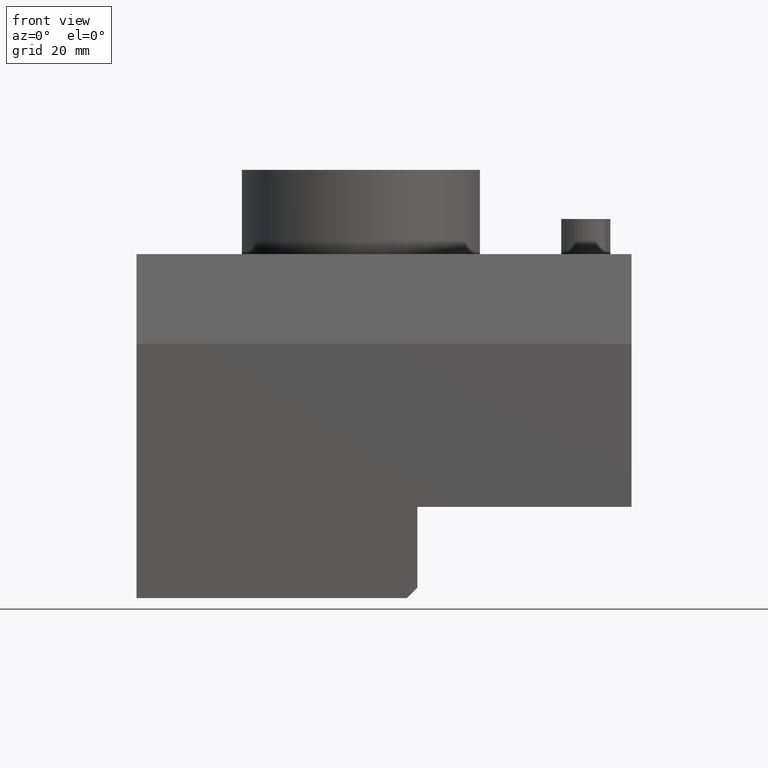
[diagram: clean part render]
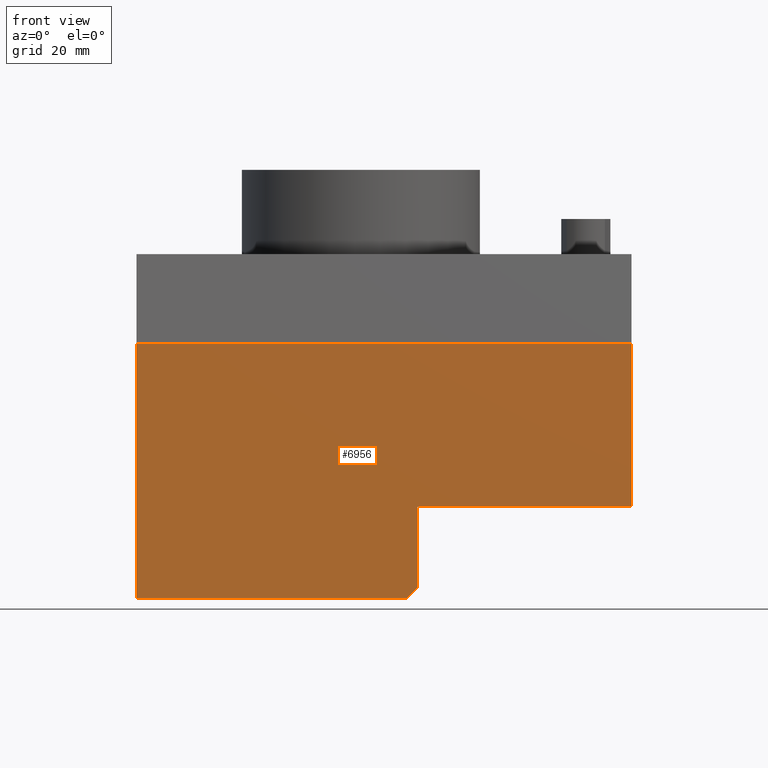
[diagram: same view with one face highlighted and labeled with its STEP entity id]
A machine part, front view. The second image highlights one B-rep face of the part: STEP entity #6956.
In plain terms, the highlighted planar face has unit normal (0, 1, 0).
Its self-contained STEP definition (entity closure, byte-faithful):
#71 = PLANE('',#72);
#72 = AXIS2_PLACEMENT_3D('',#73,#74,#75);
#73 = CARTESIAN_POINT('',(77.,-86.27928892228,-72.));
#74 = DIRECTION('',(0.E+000,0.E+000,-1.));
#75 = DIRECTION('',(1.,0.E+000,0.E+000));
#2731 = EDGE_CURVE('',#2732,#2734,#2736,.T.);
#2732 = VERTEX_POINT('',#2733);
#2733 = CARTESIAN_POINT('',(77.,-46.5,-72.));
#2734 = VERTEX_POINT('',#2735);
#2735 = CARTESIAN_POINT('',(16.,-46.5,-72.));
#2736 = SURFACE_CURVE('',#2737,(#2741,#2748),.PCURVE_S1.);
#2737 = LINE('',#2738,#2739);
#2738 = CARTESIAN_POINT('',(-64.,-46.5,-72.));
#2739 = VECTOR('',#2740,1.);
#2740 = DIRECTION('',(-1.,0.E+000,0.E+000));
#2741 = PCURVE('',#71,#2742);
#2742 = DEFINITIONAL_REPRESENTATION('',(#2743),#2747);
#2743 = LINE('',#2744,#2745);
#2744 = CARTESIAN_POINT('',(-141.,-39.77928892228));
#2745 = VECTOR('',#2746,1.);
#2746 = DIRECTION('',(-1.,0.E+000));
#2747 = ( GEOMETRIC_REPRESENTATION_CONTEXT(2) 
PARAMETRIC_REPRESENTATION_CONTEXT() REPRESENTATION_CONTEXT('2D SPACE',''
  ) );
#2748 = PCURVE('',#2749,#2754);
#2749 = PLANE('',#2750);
#2750 = AXIS2_PLACEMENT_3D('',#2751,#2752,#2753);
#2751 = CARTESIAN_POINT('',(-64.,-46.5,-98.));
#2752 = DIRECTION('',(0.E+000,1.,0.E+000));
#2753 = DIRECTION('',(-1.,0.E+000,0.E+000));
#2754 = DEFINITIONAL_REPRESENTATION('',(#2755),#2759);
#2755 = LINE('',#2756,#2757);
#2756 = CARTESIAN_POINT('',(0.E+000,26.));
#2757 = VECTOR('',#2758,1.);
#2758 = DIRECTION('',(1.,0.E+000));
#2759 = ( GEOMETRIC_REPRESENTATION_CONTEXT(2) 
PARAMETRIC_REPRESENTATION_CONTEXT() REPRESENTATION_CONTEXT('2D SPACE',''
  ) );
#2777 = PLANE('',#2778);
#2778 = AXIS2_PLACEMENT_3D('',#2779,#2780,#2781);
#2779 = CARTESIAN_POINT('',(16.,-86.27928892228,-72.));
#2780 = DIRECTION('',(1.,0.E+000,0.E+000));
#2781 = DIRECTION('',(0.E+000,0.E+000,1.));
#2831 = PLANE('',#2832);
#2832 = AXIS2_PLACEMENT_3D('',#2833,#2834,#2835);
#2833 = CARTESIAN_POINT('',(77.,-25.,-98.));
#2834 = DIRECTION('',(-1.,0.E+000,0.E+000));
#2835 = DIRECTION('',(0.E+000,0.E+000,-1.));
#4346 = PLANE('',#4347);
#4347 = AXIS2_PLACEMENT_3D('',#4348,#4349,#4350);
#4348 = CARTESIAN_POINT('',(16.,-86.27928892228,-95.));
#4349 = DIRECTION('',(0.707106781187,0.E+000,-0.707106781187));
#4350 = DIRECTION('',(0.707106781187,0.E+000,0.707106781187));
#4374 = PLANE('',#4375);
#4375 = AXIS2_PLACEMENT_3D('',#4376,#4377,#4378);
#4376 = CARTESIAN_POINT('',(-64.,-25.,-98.));
#4377 = DIRECTION('',(0.E+000,0.E+000,1.));
#4378 = DIRECTION('',(-1.,0.E+000,0.E+000));
#4402 = PLANE('',#4403);
#4403 = AXIS2_PLACEMENT_3D('',#4404,#4405,#4406);
#4404 = CARTESIAN_POINT('',(-64.,-25.,-98.));
#4405 = DIRECTION('',(-1.,0.E+000,0.E+000));
#4406 = DIRECTION('',(0.E+000,0.E+000,-1.));
#6129 = VERTEX_POINT('',#6130);
#6130 = CARTESIAN_POINT('',(16.,-46.5,-95.));
#6151 = EDGE_CURVE('',#6129,#6152,#6154,.T.);
#6152 = VERTEX_POINT('',#6153);
#6153 = CARTESIAN_POINT('',(13.,-46.5,-98.));
#6154 = SURFACE_CURVE('',#6155,(#6159,#6166),.PCURVE_S1.);
#6155 = LINE('',#6156,#6157);
#6156 = CARTESIAN_POINT('',(-25.5,-46.5,-136.5));
#6157 = VECTOR('',#6158,1.);
#6158 = DIRECTION('',(-0.707106781187,-0.E+000,-0.707106781187));
#6159 = PCURVE('',#4346,#6160);
#6160 = DEFINITIONAL_REPRESENTATION('',(#6161),#6165);
#6161 = LINE('',#6162,#6163);
#6162 = CARTESIAN_POINT('',(-58.68986283848,-39.77928892228));
#6163 = VECTOR('',#6164,1.);
#6164 = DIRECTION('',(-1.,0.E+000));
#6165 = ( GEOMETRIC_REPRESENTATION_CONTEXT(2) 
PARAMETRIC_REPRESENTATION_CONTEXT() REPRESENTATION_CONTEXT('2D SPACE',''
  ) );
#6166 = PCURVE('',#2749,#6167);
#6167 = DEFINITIONAL_REPRESENTATION('',(#6168),#6172);
#6168 = LINE('',#6169,#6170);
#6169 = CARTESIAN_POINT('',(-38.5,-38.5));
#6170 = VECTOR('',#6171,1.);
#6171 = DIRECTION('',(0.707106781187,-0.707106781187));
#6172 = ( GEOMETRIC_REPRESENTATION_CONTEXT(2) 
PARAMETRIC_REPRESENTATION_CONTEXT() REPRESENTATION_CONTEXT('2D SPACE',''
  ) );
#6198 = EDGE_CURVE('',#2734,#6129,#6199,.T.);
#6199 = SURFACE_CURVE('',#6200,(#6204,#6211),.PCURVE_S1.);
#6200 = LINE('',#6201,#6202);
#6201 = CARTESIAN_POINT('',(16.,-46.5,-98.));
#6202 = VECTOR('',#6203,1.);
#6203 = DIRECTION('',(0.E+000,0.E+000,-1.));
#6204 = PCURVE('',#2777,#6205);
#6205 = DEFINITIONAL_REPRESENTATION('',(#6206),#6210);
#6206 = LINE('',#6207,#6208);
#6207 = CARTESIAN_POINT('',(-26.,-39.77928892228));
#6208 = VECTOR('',#6209,1.);
#6209 = DIRECTION('',(-1.,0.E+000));
#6210 = ( GEOMETRIC_REPRESENTATION_CONTEXT(2) 
PARAMETRIC_REPRESENTATION_CONTEXT() REPRESENTATION_CONTEXT('2D SPACE',''
  ) );
#6211 = PCURVE('',#2749,#6212);
#6212 = DEFINITIONAL_REPRESENTATION('',(#6213),#6217);
#6213 = LINE('',#6214,#6215);
#6214 = CARTESIAN_POINT('',(-80.,0.E+000));
#6215 = VECTOR('',#6216,1.);
#6216 = DIRECTION('',(0.E+000,-1.));
#6217 = ( GEOMETRIC_REPRESENTATION_CONTEXT(2) 
PARAMETRIC_REPRESENTATION_CONTEXT() REPRESENTATION_CONTEXT('2D SPACE',''
  ) );
#6731 = PLANE('',#6732);
#6732 = AXIS2_PLACEMENT_3D('',#6733,#6734,#6735);
#6733 = CARTESIAN_POINT('',(-64.,-46.5,-25.52076818828));
#6734 = DIRECTION('',(0.E+000,0.984807753012,-0.173648177667));
#6735 = DIRECTION('',(0.E+000,0.173648177667,0.984807753012));
#6889 = EDGE_CURVE('',#6890,#6892,#6894,.T.);
#6890 = VERTEX_POINT('',#6891);
#6891 = CARTESIAN_POINT('',(-64.,-46.5,-25.52076818828));
#6892 = VERTEX_POINT('',#6893);
#6893 = CARTESIAN_POINT('',(77.,-46.5,-25.52076818828));
#6894 = SURFACE_CURVE('',#6895,(#6899,#6906),.PCURVE_S1.);
#6895 = LINE('',#6896,#6897);
#6896 = CARTESIAN_POINT('',(-64.,-46.5,-25.52076818828));
#6897 = VECTOR('',#6898,1.);
#6898 = DIRECTION('',(1.,0.E+000,0.E+000));
#6899 = PCURVE('',#6731,#6900);
#6900 = DEFINITIONAL_REPRESENTATION('',(#6901),#6905);
#6901 = LINE('',#6902,#6903);
#6902 = CARTESIAN_POINT('',(0.E+000,0.E+000));
#6903 = VECTOR('',#6904,1.);
#6904 = DIRECTION('',(0.E+000,1.));
#6905 = ( GEOMETRIC_REPRESENTATION_CONTEXT(2) 
PARAMETRIC_REPRESENTATION_CONTEXT() REPRESENTATION_CONTEXT('2D SPACE',''
  ) );
#6906 = PCURVE('',#2749,#6907);
#6907 = DEFINITIONAL_REPRESENTATION('',(#6908),#6912);
#6908 = LINE('',#6909,#6910);
#6909 = CARTESIAN_POINT('',(0.E+000,72.47923181172));
#6910 = VECTOR('',#6911,1.);
#6911 = DIRECTION('',(-1.,0.E+000));
#6912 = ( GEOMETRIC_REPRESENTATION_CONTEXT(2) 
PARAMETRIC_REPRESENTATION_CONTEXT() REPRESENTATION_CONTEXT('2D SPACE',''
  ) );
#6956 = ADVANCED_FACE('',(#6957),#2749,.F.);
#6957 = FACE_BOUND('',#6958,.T.);
#6958 = EDGE_LOOP('',(#6959,#6960,#6981,#6982,#7005,#7026,#7027));
#6959 = ORIENTED_EDGE('',*,*,#2731,.F.);
#6960 = ORIENTED_EDGE('',*,*,#6961,.T.);
#6961 = EDGE_CURVE('',#2732,#6892,#6962,.T.);
#6962 = SURFACE_CURVE('',#6963,(#6967,#6974),.PCURVE_S1.);
#6963 = LINE('',#6964,#6965);
#6964 = CARTESIAN_POINT('',(77.,-46.5,-98.));
#6965 = VECTOR('',#6966,1.);
#6966 = DIRECTION('',(0.E+000,0.E+000,1.));
#6967 = PCURVE('',#2749,#6968);
#6968 = DEFINITIONAL_REPRESENTATION('',(#6969),#6973);
#6969 = LINE('',#6970,#6971);
#6970 = CARTESIAN_POINT('',(-141.,0.E+000));
#6971 = VECTOR('',#6972,1.);
#6972 = DIRECTION('',(0.E+000,1.));
#6973 = ( GEOMETRIC_REPRESENTATION_CONTEXT(2) 
PARAMETRIC_REPRESENTATION_CONTEXT() REPRESENTATION_CONTEXT('2D SPACE',''
  ) );
#6974 = PCURVE('',#2831,#6975);
#6975 = DEFINITIONAL_REPRESENTATION('',(#6976),#6980);
#6976 = LINE('',#6977,#6978);
#6977 = CARTESIAN_POINT('',(0.E+000,21.5));
#6978 = VECTOR('',#6979,1.);
#6979 = DIRECTION('',(-1.,0.E+000));
#6980 = ( GEOMETRIC_REPRESENTATION_CONTEXT(2) 
PARAMETRIC_REPRESENTATION_CONTEXT() REPRESENTATION_CONTEXT('2D SPACE',''
  ) );
#6981 = ORIENTED_EDGE('',*,*,#6889,.F.);
#6982 = ORIENTED_EDGE('',*,*,#6983,.F.);
#6983 = EDGE_CURVE('',#6984,#6890,#6986,.T.);
#6984 = VERTEX_POINT('',#6985);
#6985 = CARTESIAN_POINT('',(-64.,-46.5,-98.));
#6986 = SURFACE_CURVE('',#6987,(#6991,#6998),.PCURVE_S1.);
#6987 = LINE('',#6988,#6989);
#6988 = CARTESIAN_POINT('',(-64.,-46.5,-98.));
#6989 = VECTOR('',#6990,1.);
#6990 = DIRECTION('',(0.E+000,0.E+000,1.));
#6991 = PCURVE('',#2749,#6992);
#6992 = DEFINITIONAL_REPRESENTATION('',(#6993),#6997);
#6993 = LINE('',#6994,#6995);
#6994 = CARTESIAN_POINT('',(0.E+000,0.E+000));
#6995 = VECTOR('',#6996,1.);
#6996 = DIRECTION('',(0.E+000,1.));
#6997 = ( GEOMETRIC_REPRESENTATION_CONTEXT(2) 
PARAMETRIC_REPRESENTATION_CONTEXT() REPRESENTATION_CONTEXT('2D SPACE',''
  ) );
#6998 = PCURVE('',#4402,#6999);
#6999 = DEFINITIONAL_REPRESENTATION('',(#7000),#7004);
#7000 = LINE('',#7001,#7002);
#7001 = CARTESIAN_POINT('',(0.E+000,21.5));
#7002 = VECTOR('',#7003,1.);
#7003 = DIRECTION('',(-1.,0.E+000));
#7004 = ( GEOMETRIC_REPRESENTATION_CONTEXT(2) 
PARAMETRIC_REPRESENTATION_CONTEXT() REPRESENTATION_CONTEXT('2D SPACE',''
  ) );
#7005 = ORIENTED_EDGE('',*,*,#7006,.T.);
#7006 = EDGE_CURVE('',#6984,#6152,#7007,.T.);
#7007 = SURFACE_CURVE('',#7008,(#7012,#7019),.PCURVE_S1.);
#7008 = LINE('',#7009,#7010);
#7009 = CARTESIAN_POINT('',(-64.,-46.5,-98.));
#7010 = VECTOR('',#7011,1.);
#7011 = DIRECTION('',(1.,0.E+000,0.E+000));
#7012 = PCURVE('',#2749,#7013);
#7013 = DEFINITIONAL_REPRESENTATION('',(#7014),#7018);
#7014 = LINE('',#7015,#7016);
#7015 = CARTESIAN_POINT('',(0.E+000,0.E+000));
#7016 = VECTOR('',#7017,1.);
#7017 = DIRECTION('',(-1.,0.E+000));
#7018 = ( GEOMETRIC_REPRESENTATION_CONTEXT(2) 
PARAMETRIC_REPRESENTATION_CONTEXT() REPRESENTATION_CONTEXT('2D SPACE',''
  ) );
#7019 = PCURVE('',#4374,#7020);
#7020 = DEFINITIONAL_REPRESENTATION('',(#7021),#7025);
#7021 = LINE('',#7022,#7023);
#7022 = CARTESIAN_POINT('',(0.E+000,21.5));
#7023 = VECTOR('',#7024,1.);
#7024 = DIRECTION('',(-1.,0.E+000));
#7025 = ( GEOMETRIC_REPRESENTATION_CONTEXT(2) 
PARAMETRIC_REPRESENTATION_CONTEXT() REPRESENTATION_CONTEXT('2D SPACE',''
  ) );
#7026 = ORIENTED_EDGE('',*,*,#6151,.F.);
#7027 = ORIENTED_EDGE('',*,*,#6198,.F.);